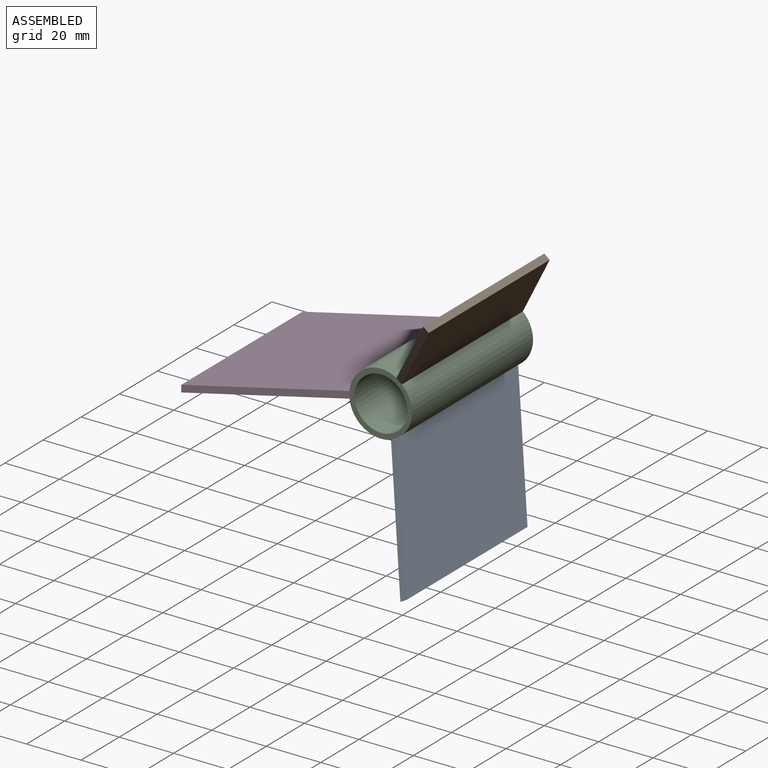
[diagram: assembled view]
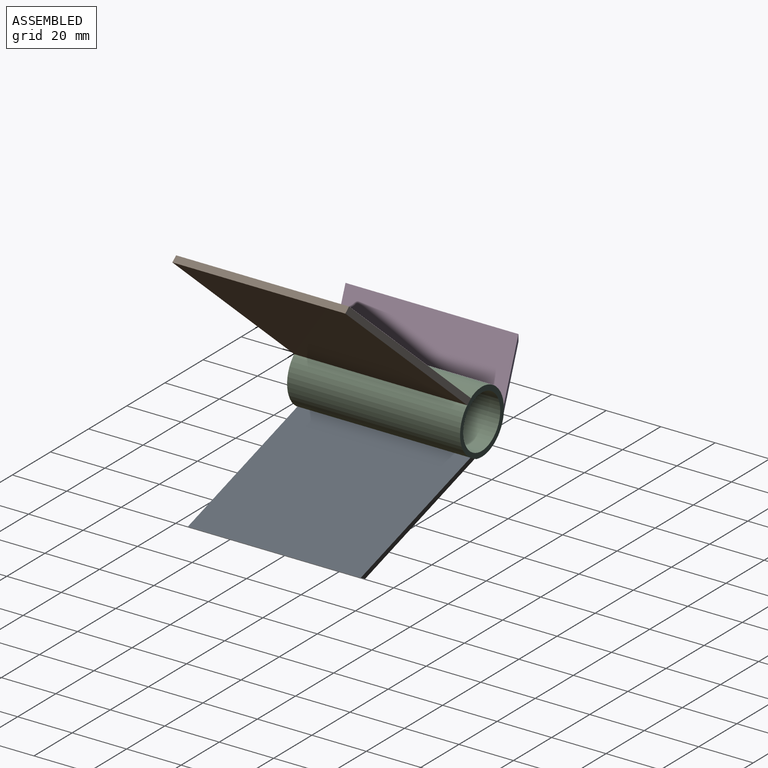
[diagram: assembled view, second angle]
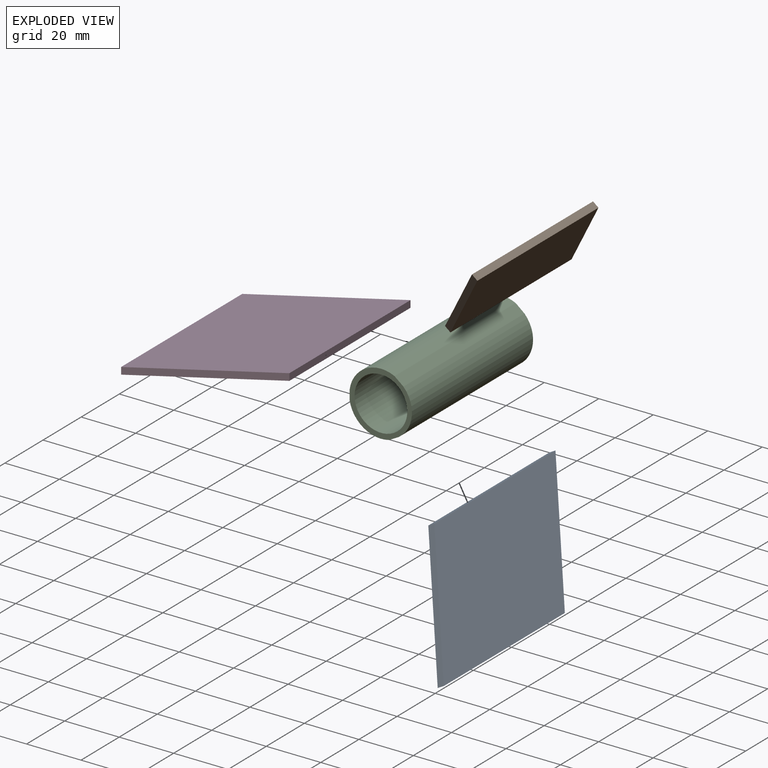
[diagram: exploded view]
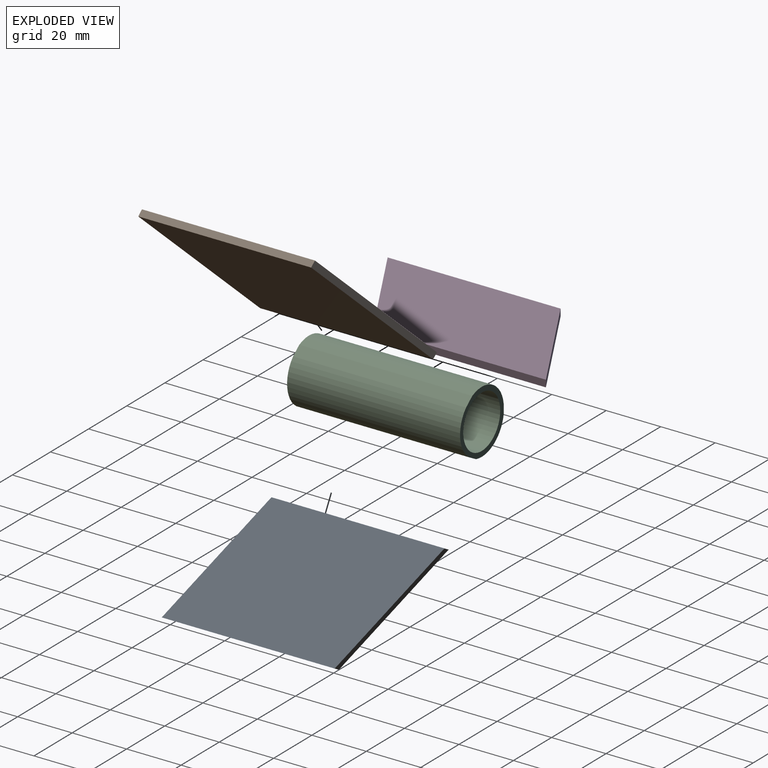
[diagram: exploded view, second angle]
ASSEMBLY  parts=4 mates=3
PART A: 6 faces, bbox 44x88.9x2.5 mm
  f0: plane 63.5x2.54mm, normal (1,0,0), area 161.3mm2, adj f1,f3,f4,f5
  f1: plane 43.99x25.4mm, normal (-0.5,0.87,0), area 129mm2, adj f0,f2,f4,f5
  f2: plane 63.5x2.54mm, normal (-1,0,0), area 161.3mm2, adj f1,f3,f4,f5
  f3: plane 43.99x25.4mm, normal (0.5,-0.87,0), area 129mm2, adj f0,f2,f4,f5
  f4: plane 88.9x43.99mm, normal (0,0,-1), area 2793.6mm2, adj f0,f1,f2,f3
  f5: plane 88.9x43.99mm, normal (0,0,1), area 2793.6mm2, adj f0,f1,f2,f3
PART B: same geometry as A
PART C: 9 faces, bbox 22.9x23x63.5 mm
  f0: cylinder r=11.65mm len=63.5mm, axis (0,0,-1), area 1238.1mm2, adj f1,f5,f7,f8
  f1: plane 63.5x3.77mm, normal (0.38,0.93,0), area 258.8mm2, adj f0,f2,f7,f8
  f2: cylinder r=11.39mm len=63.5mm, axis (0,0,-1), area 1239.5mm2, adj f1,f3,f7,f8
  f3: plane 63.5x4.18mm, normal (-1,0,0), area 265.5mm2, adj f2,f4,f7,f8
  f4: cylinder r=11.61mm len=63.5mm, axis (0,0,-1), area 1388.7mm2, adj f3,f5,f7,f8
  f5: plane 63.5x2.63mm, normal (0.63,-0.78,0), area 214.8mm2, adj f0,f4,f7,f8
  f6: cylinder r=9.69mm len=63.5mm, axis (0,0,-1), area 3866.5mm2, adj f7,f8
  f7: plane 23x22.94mm, normal (0,0,1), area 122.8mm2, adj f0,f1,f2,f3,f4,f5,f6
  f8: plane 23x22.94mm, normal (0,0,-1), area 122.8mm2, adj f0,f1,f2,f3,f4,f5,f6
PART D: same geometry as A
PLACE A rot(axis=(-0.86,0,0.51),180deg) t=(167.64,22.89,-32.02)mm
PLACE B rot(axis=(0,1,0),129deg) t=(150.34,-15.21,25.76)mm
PLACE C rot(axis=(0.32,0.67,-0.67),144.5deg) t=(142.73,48.29,17.4)mm
PLACE D t=(131.22,-15.21,18.51)mm
MATE fastened A.f2 <-> C.f1  axis (-0.48,0,0.88) through (147.53,16.54,7.13)mm
MATE fastened B.f0 <-> C.f3  axis (-0.63,0,-0.78) through (149.35,16.54,26.56)mm
MATE fastened C.f5 <-> D.f0  axis (-1,0,0) through (131.22,16.54,17.24)mm
